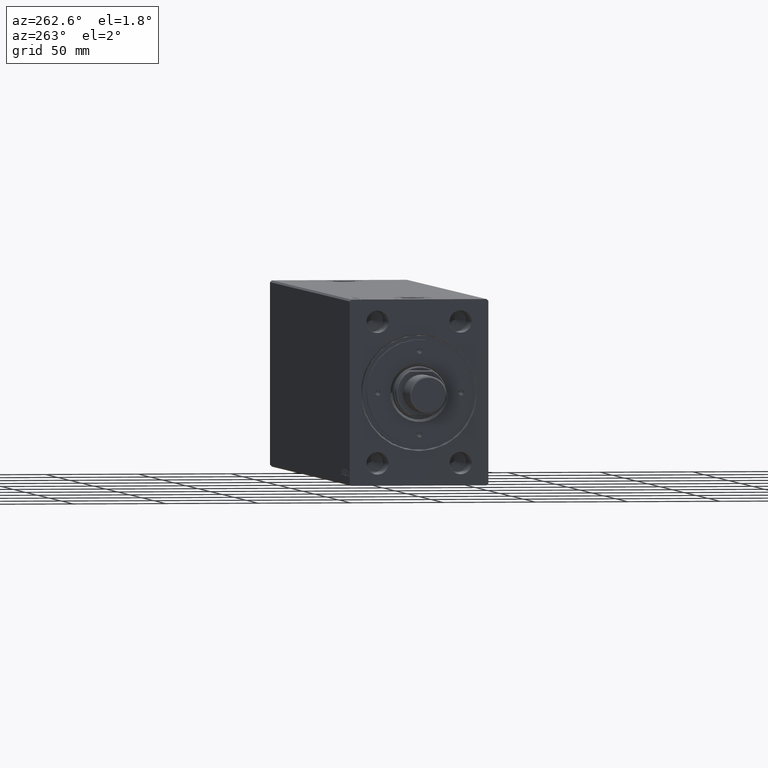
[diagram: clean part render]
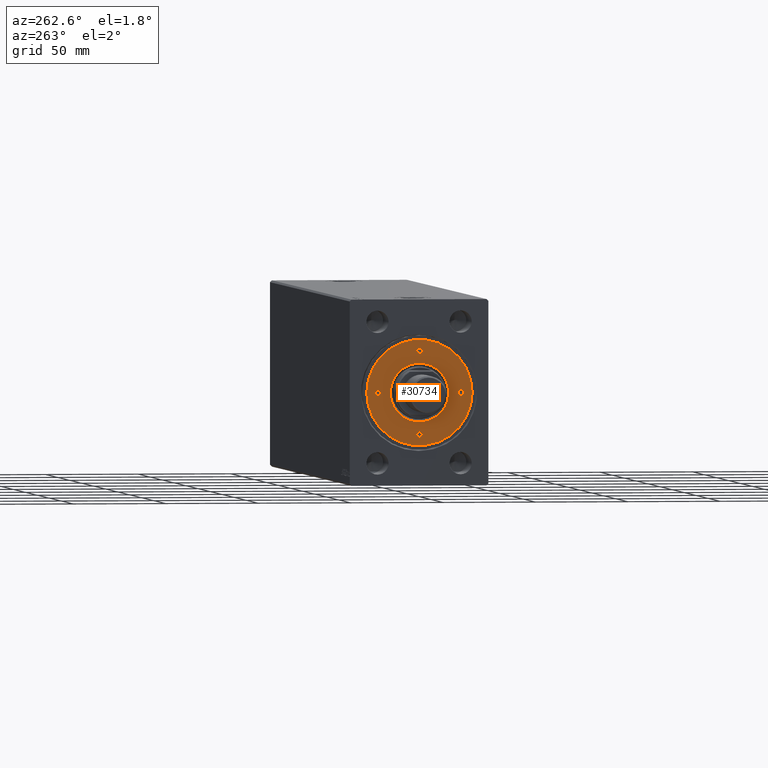
[diagram: same view with one face highlighted and labeled with its STEP entity id]
A machine part, auxiliary view. The second image highlights one B-rep face of the part: STEP entity #30734.
In plain terms, the highlighted planar face has unit normal (-1, 0, 0).
Its self-contained STEP definition (entity closure, byte-faithful):
#176 = CIRCLE ( 'NONE', #25204, 28.50000000000000000 ) ;
#438 = CARTESIAN_POINT ( 'NONE',  ( 0.000000000000000000, 22.50000000000000000, 9.999999999999998224 ) ) ;
#547 = EDGE_CURVE ( 'NONE', #18453, #14011, #3641, .T. ) ;
#560 = EDGE_CURVE ( 'NONE', #43496, #8462, #176, .T. ) ;
#979 = EDGE_CURVE ( 'NONE', #3478, #37653, #38450, .T. ) ;
#1375 = CIRCLE ( 'NONE', #22840, 1.499999999999997780 ) ;
#2886 = DIRECTION ( 'NONE',  ( 1.000000000000000000, 0.000000000000000000, 0.000000000000000000 ) ) ;
#3179 = CIRCLE ( 'NONE', #36060, 1.499999999999996891 ) ;
#3478 = VERTEX_POINT ( 'NONE', #3798 ) ;
#3566 = DIRECTION ( 'NONE',  ( 1.000000000000000000, 0.000000000000000000, 0.000000000000000000 ) ) ;
#3641 = CIRCLE ( 'NONE', #20826, 1.499999999999996891 ) ;
#3759 = CARTESIAN_POINT ( 'NONE',  ( -21.00000000000000000, 0.000000000000000000, 9.999999999999998224 ) ) ;
#3798 = CARTESIAN_POINT ( 'NONE',  ( -23.99999999999999645, 1.836970198721027222E-16, 9.999999999999998224 ) ) ;
#3812 = ORIENTED_EDGE ( 'NONE', *, *, #23068, .F. ) ;
#3857 = FACE_BOUND ( 'NONE', #22812, .T. ) ;
#4467 = ORIENTED_EDGE ( 'NONE', *, *, #5468, .F. ) ;
#4609 = DIRECTION ( 'NONE',  ( 1.000000000000000000, 0.000000000000000000, 0.000000000000000000 ) ) ;
#4851 = EDGE_CURVE ( 'NONE', #14518, #32352, #14885, .T. ) ;
#5313 = CARTESIAN_POINT ( 'NONE',  ( 0.000000000000000000, 0.000000000000000000, 9.999999999999998224 ) ) ;
#5468 = EDGE_CURVE ( 'NONE', #12448, #8225, #14915, .T. ) ;
#6428 = CARTESIAN_POINT ( 'NONE',  ( -1.499999999999996891, 22.50000000000000000, 9.999999999999998224 ) ) ;
#6556 = CIRCLE ( 'NONE', #42912, 15.79999999999997762 ) ;
#7063 = EDGE_LOOP ( 'NONE', ( #23378, #27429 ) ) ;
#7228 = FACE_BOUND ( 'NONE', #7063, .T. ) ;
#7818 = CARTESIAN_POINT ( 'NONE',  ( -1.499999999999996891, -22.50000000000000000, 9.999999999999998224 ) ) ;
#8225 = VERTEX_POINT ( 'NONE', #28230 ) ;
#8462 = VERTEX_POINT ( 'NONE', #44231 ) ;
#10601 = ORIENTED_EDGE ( 'NONE', *, *, #38400, .F. ) ;
#10704 = AXIS2_PLACEMENT_3D ( 'NONE', #36648, #22804, #36428 ) ;
#11303 = AXIS2_PLACEMENT_3D ( 'NONE', #30274, #22919, #29620 ) ;
#11490 = CARTESIAN_POINT ( 'NONE',  ( -22.50000000000000000, 0.000000000000000000, 9.999999999999998224 ) ) ;
#12008 = CARTESIAN_POINT ( 'NONE',  ( 0.000000000000000000, -22.50000000000000000, 9.999999999999998224 ) ) ;
#12448 = VERTEX_POINT ( 'NONE', #39908 ) ;
#12469 = CIRCLE ( 'NONE', #21032, 28.50000000000000000 ) ;
#13295 = ORIENTED_EDGE ( 'NONE', *, *, #21825, .F. ) ;
#13338 = CARTESIAN_POINT ( 'NONE',  ( -28.50000000000000000, 0.000000000000000000, 9.999999999999998224 ) ) ;
#13498 = CARTESIAN_POINT ( 'NONE',  ( 15.79999999999997407, 0.000000000000000000, 9.999999999999998224 ) ) ;
#14011 = VERTEX_POINT ( 'NONE', #15142 ) ;
#14518 = VERTEX_POINT ( 'NONE', #29288 ) ;
#14885 = CIRCLE ( 'NONE', #43456, 15.79999999999997762 ) ;
#14915 = CIRCLE ( 'NONE', #19197, 1.499999999999997780 ) ;
#15142 = CARTESIAN_POINT ( 'NONE',  ( 1.499999999999996891, -22.50000000000000000, 9.999999999999998224 ) ) ;
#15291 = FACE_OUTER_BOUND ( 'NONE', #28852, .T. ) ;
#15509 = PLANE ( 'NONE',  #16536 ) ;
#15615 = CIRCLE ( 'NONE', #32723, 1.499999999999996891 ) ;
#15725 = CARTESIAN_POINT ( 'NONE',  ( 0.000000000000000000, 0.000000000000000000, 9.999999999999998224 ) ) ;
#16021 = CIRCLE ( 'NONE', #43853, 1.499999999999997780 ) ;
#16536 = AXIS2_PLACEMENT_3D ( 'NONE', #15725, #22014, #39449 ) ;
#17865 = VERTEX_POINT ( 'NONE', #27377 ) ;
#18170 = EDGE_CURVE ( 'NONE', #23049, #17865, #15615, .T. ) ;
#18285 = CARTESIAN_POINT ( 'NONE',  ( 0.000000000000000000, 0.000000000000000000, 9.999999999999998224 ) ) ;
#18334 = CARTESIAN_POINT ( 'NONE',  ( 0.000000000000000000, 0.000000000000000000, 9.999999999999998224 ) ) ;
#18453 = VERTEX_POINT ( 'NONE', #7818 ) ;
#19197 = AXIS2_PLACEMENT_3D ( 'NONE', #19969, #23995, #33600 ) ;
#19969 = CARTESIAN_POINT ( 'NONE',  ( 22.50000000000000000, 0.000000000000000000, 9.999999999999998224 ) ) ;
#20790 = ORIENTED_EDGE ( 'NONE', *, *, #560, .T. ) ;
#20826 = AXIS2_PLACEMENT_3D ( 'NONE', #12008, #38642, #4609 ) ;
#21032 = AXIS2_PLACEMENT_3D ( 'NONE', #18334, #28634, #38696 ) ;
#21825 = EDGE_CURVE ( 'NONE', #8225, #12448, #1375, .T. ) ;
#22014 = DIRECTION ( 'NONE',  ( 0.000000000000000000, 0.000000000000000000, 1.000000000000000000 ) ) ;
#22468 = DIRECTION ( 'NONE',  ( 1.000000000000000000, 0.000000000000000000, 0.000000000000000000 ) ) ;
#22804 = DIRECTION ( 'NONE',  ( -0.000000000000000000, -0.000000000000000000, 1.000000000000000000 ) ) ;
#22812 = EDGE_LOOP ( 'NONE', ( #4467, #13295 ) ) ;
#22840 = AXIS2_PLACEMENT_3D ( 'NONE', #39840, #37130, #2886 ) ;
#22919 = DIRECTION ( 'NONE',  ( -0.000000000000000000, -0.000000000000000000, 1.000000000000000000 ) ) ;
#23049 = VERTEX_POINT ( 'NONE', #6428 ) ;
#23065 = EDGE_LOOP ( 'NONE', ( #10601, #26840 ) ) ;
#23068 = EDGE_CURVE ( 'NONE', #14011, #18453, #38605, .T. ) ;
#23378 = ORIENTED_EDGE ( 'NONE', *, *, #44057, .F. ) ;
#23995 = DIRECTION ( 'NONE',  ( -0.000000000000000000, -0.000000000000000000, 1.000000000000000000 ) ) ;
#24691 = ORIENTED_EDGE ( 'NONE', *, *, #39836, .T. ) ;
#25140 = FACE_BOUND ( 'NONE', #30148, .T. ) ;
#25204 = AXIS2_PLACEMENT_3D ( 'NONE', #18285, #25895, #39315 ) ;
#25895 = DIRECTION ( 'NONE',  ( 0.000000000000000000, 0.000000000000000000, 1.000000000000000000 ) ) ;
#26020 = FACE_BOUND ( 'NONE', #38640, .T. ) ;
#26621 = ORIENTED_EDGE ( 'NONE', *, *, #27953, .T. ) ;
#26792 = DIRECTION ( 'NONE',  ( 1.000000000000000000, 0.000000000000000000, 0.000000000000000000 ) ) ;
#26840 = ORIENTED_EDGE ( 'NONE', *, *, #979, .F. ) ;
#27377 = CARTESIAN_POINT ( 'NONE',  ( 1.499999999999996891, 22.50000000000000000, 9.999999999999998224 ) ) ;
#27429 = ORIENTED_EDGE ( 'NONE', *, *, #18170, .F. ) ;
#27953 = EDGE_CURVE ( 'NONE', #32352, #14518, #6556, .T. ) ;
#28230 = CARTESIAN_POINT ( 'NONE',  ( 21.00000000000000000, 1.836970198721027222E-16, 9.999999999999998224 ) ) ;
#28634 = DIRECTION ( 'NONE',  ( 0.000000000000000000, 0.000000000000000000, 1.000000000000000000 ) ) ;
#28852 = EDGE_LOOP ( 'NONE', ( #20790, #24691 ) ) ;
#29288 = CARTESIAN_POINT ( 'NONE',  ( -15.79999999999997407, 1.934941942652814868E-15, 9.999999999999998224 ) ) ;
#29461 = DIRECTION ( 'NONE',  ( 1.000000000000000000, 0.000000000000000000, 0.000000000000000000 ) ) ;
#29620 = DIRECTION ( 'NONE',  ( 1.000000000000000000, 0.000000000000000000, 0.000000000000000000 ) ) ;
#30148 = EDGE_LOOP ( 'NONE', ( #3812, #42671 ) ) ;
#30274 = CARTESIAN_POINT ( 'NONE',  ( -22.50000000000000000, 0.000000000000000000, 9.999999999999998224 ) ) ;
#30553 = ORIENTED_EDGE ( 'NONE', *, *, #4851, .T. ) ;
#30663 = DIRECTION ( 'NONE',  ( -0.000000000000000000, -0.000000000000000000, 1.000000000000000000 ) ) ;
#30734 = ADVANCED_FACE ( 'NONE', ( #37892, #7228, #3857, #25140, #26020, #15291 ), #15509, .T. ) ;
#32352 = VERTEX_POINT ( 'NONE', #13498 ) ;
#32723 = AXIS2_PLACEMENT_3D ( 'NONE', #438, #30663, #3566 ) ;
#33600 = DIRECTION ( 'NONE',  ( 1.000000000000000000, 0.000000000000000000, 0.000000000000000000 ) ) ;
#36060 = AXIS2_PLACEMENT_3D ( 'NONE', #36671, #36235, #39605 ) ;
#36235 = DIRECTION ( 'NONE',  ( -0.000000000000000000, -0.000000000000000000, 1.000000000000000000 ) ) ;
#36428 = DIRECTION ( 'NONE',  ( 1.000000000000000000, 0.000000000000000000, 0.000000000000000000 ) ) ;
#36648 = CARTESIAN_POINT ( 'NONE',  ( 0.000000000000000000, -22.50000000000000000, 9.999999999999998224 ) ) ;
#36671 = CARTESIAN_POINT ( 'NONE',  ( 0.000000000000000000, 22.50000000000000000, 9.999999999999998224 ) ) ;
#37130 = DIRECTION ( 'NONE',  ( -0.000000000000000000, -0.000000000000000000, 1.000000000000000000 ) ) ;
#37653 = VERTEX_POINT ( 'NONE', #3759 ) ;
#37892 = FACE_BOUND ( 'NONE', #23065, .T. ) ;
#38400 = EDGE_CURVE ( 'NONE', #37653, #3478, #16021, .T. ) ;
#38450 = CIRCLE ( 'NONE', #11303, 1.499999999999997780 ) ;
#38605 = CIRCLE ( 'NONE', #10704, 1.499999999999996891 ) ;
#38640 = EDGE_LOOP ( 'NONE', ( #26621, #30553 ) ) ;
#38642 = DIRECTION ( 'NONE',  ( -0.000000000000000000, -0.000000000000000000, 1.000000000000000000 ) ) ;
#38696 = DIRECTION ( 'NONE',  ( 1.000000000000000000, 0.000000000000000000, 0.000000000000000000 ) ) ;
#39020 = DIRECTION ( 'NONE',  ( -0.000000000000000000, -0.000000000000000000, 1.000000000000000000 ) ) ;
#39085 = CARTESIAN_POINT ( 'NONE',  ( 0.000000000000000000, 0.000000000000000000, 9.999999999999998224 ) ) ;
#39315 = DIRECTION ( 'NONE',  ( 1.000000000000000000, 0.000000000000000000, 0.000000000000000000 ) ) ;
#39449 = DIRECTION ( 'NONE',  ( 1.000000000000000000, 0.000000000000000000, -0.000000000000000000 ) ) ;
#39605 = DIRECTION ( 'NONE',  ( 1.000000000000000000, 0.000000000000000000, 0.000000000000000000 ) ) ;
#39836 = EDGE_CURVE ( 'NONE', #8462, #43496, #12469, .T. ) ;
#39840 = CARTESIAN_POINT ( 'NONE',  ( 22.50000000000000000, 0.000000000000000000, 9.999999999999998224 ) ) ;
#39908 = CARTESIAN_POINT ( 'NONE',  ( 23.99999999999999645, 0.000000000000000000, 9.999999999999998224 ) ) ;
#42671 = ORIENTED_EDGE ( 'NONE', *, *, #547, .F. ) ;
#42912 = AXIS2_PLACEMENT_3D ( 'NONE', #39085, #43095, #29461 ) ;
#43095 = DIRECTION ( 'NONE',  ( -0.000000000000000000, -0.000000000000000000, -1.000000000000000000 ) ) ;
#43456 = AXIS2_PLACEMENT_3D ( 'NONE', #5313, #43782, #26792 ) ;
#43496 = VERTEX_POINT ( 'NONE', #13338 ) ;
#43782 = DIRECTION ( 'NONE',  ( -0.000000000000000000, -0.000000000000000000, -1.000000000000000000 ) ) ;
#43853 = AXIS2_PLACEMENT_3D ( 'NONE', #11490, #39020, #22468 ) ;
#44057 = EDGE_CURVE ( 'NONE', #17865, #23049, #3179, .T. ) ;
#44231 = CARTESIAN_POINT ( 'NONE',  ( 28.50000000000000000, 3.490243377569956456E-15, 9.999999999999998224 ) ) ;